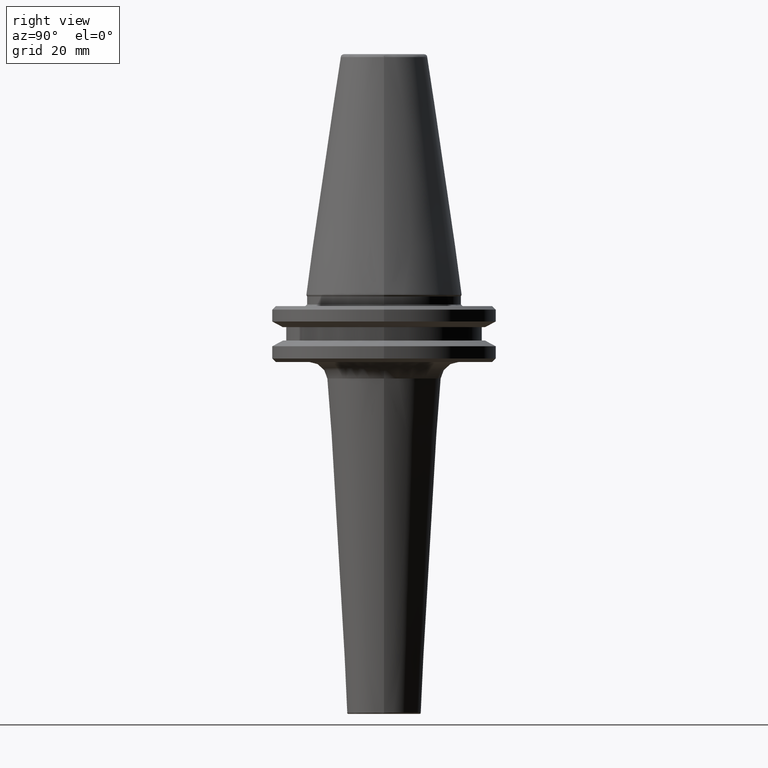
[diagram: clean part render]
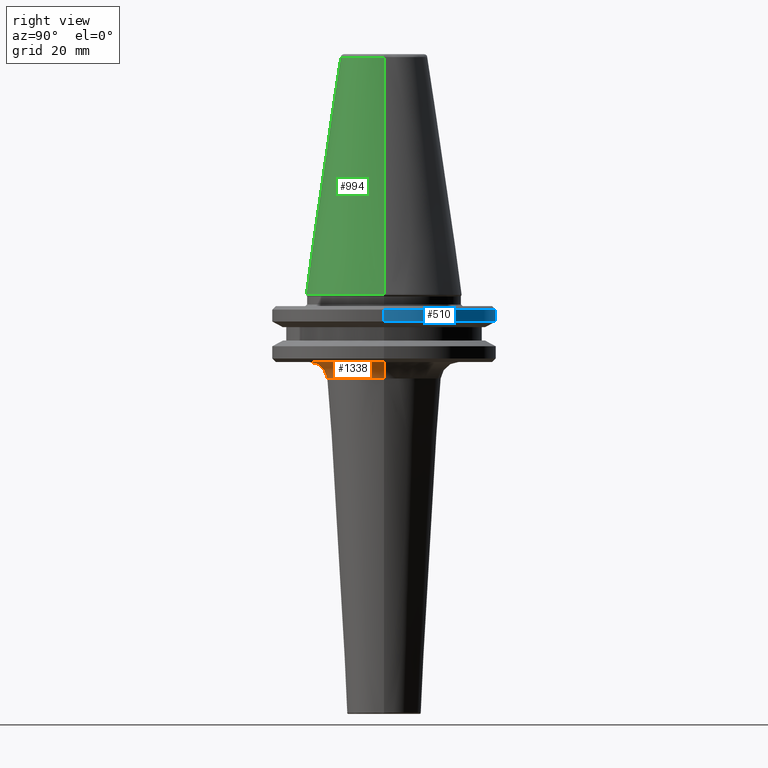
[diagram: same view with three faces highlighted in distinct colors, each labeled with its STEP entity id]
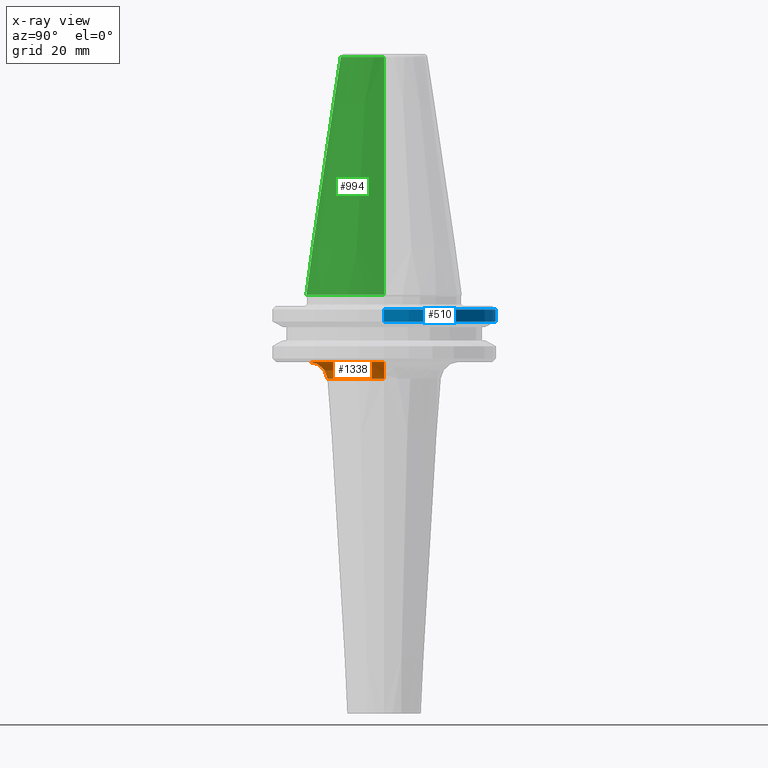
[diagram: x-ray of the same camera — body ghosted, the three highlighted faces saturated]
A machine part, right view with three faces highlighted in distinct colors.
The next image is the same camera in x-ray (body ghosted, the three faces saturated) — at least one of them is partly hidden behind the body in this view.
Their STEP definitions:

[orange] entity #1338 — the highlighted face is a freeform B-spline surface patch.
#2 = CARTESIAN_POINT ( 'NONE',  ( 18.41738258006083800, -4.510957725068745100E-015, -19.10000000000000500 ) ) ;
#5 = CARTESIAN_POINT ( 'NONE',  ( 7.245179490135040400, -19.93444734564111800, -19.10000000000000500 ) ) ;
#12 = CARTESIAN_POINT ( 'NONE',  ( 13.96191988743537300, -16.03207156304164400, -19.10000000000000900 ) ) ;
#19 = CARTESIAN_POINT ( 'NONE',  ( 19.65327147606098600, -7.973229162722665500, -19.10000000000000500 ) ) ;
#24 = CARTESIAN_POINT ( 'NONE',  ( 21.20899191454728700, -1.297423906763504900, -19.10000000000000500 ) ) ;
#31 = CARTESIAN_POINT ( 'NONE',  ( -19.82891165523184900, -7.526547279138701400, -19.10000000000000500 ) ) ;
#37 = CARTESIAN_POINT ( 'NONE',  ( -14.47949722583518600, -15.51457306364508400, -19.10000000000000100 ) ) ;
#40 = CARTESIAN_POINT ( 'NONE',  ( -7.890171319430353800, -19.68675983053532300, -19.10000000000000500 ) ) ;
#75 = CARTESIAN_POINT ( 'NONE',  ( -16.21796768721838700, 1.986128221682719700E-015, -23.80053854636027200 ) ) ;
#123 = CARTESIAN_POINT ( 'NONE',  ( 1.617188075144957400, -21.16476075172741400, -19.10000000000000900 ) ) ;
#127 = CARTESIAN_POINT ( 'NONE',  ( -21.20899191454728700, -42.41798382909456000, -19.10000000000000900 ) ) ;
#128 = CARTESIAN_POINT ( 'NONE',  ( 7.646812897879106800, -19.78255597905145900, -19.10000000000000500 ) ) ;
#134 = CARTESIAN_POINT ( 'NONE',  ( 16.24708748582498100, -13.66744679531425500, -19.10000000000000900 ) ) ;
#139 = CARTESIAN_POINT ( 'NONE',  ( 19.70405137245872900, -7.846878380904066800, -19.09999999999999800 ) ) ;
#145 = CARTESIAN_POINT ( 'NONE',  ( -21.03564205626964400, -2.740627017951445100, -19.10000000000000900 ) ) ;
#152 = CARTESIAN_POINT ( 'NONE',  ( -19.75140195169200300, -7.726918737806727200, -19.10000000000000100 ) ) ;
#157 = CARTESIAN_POINT ( 'NONE',  ( -12.65746891799390600, -17.02501635467738300, -19.10000000000000500 ) ) ;
#164 = CARTESIAN_POINT ( 'NONE',  ( -7.167547126586696600, -19.97301155171382400, -19.10000000000000900 ) ) ;
#219 = ORIENTED_EDGE ( 'NONE', *, *, #420, .F. ) ;
#221 = AXIS2_PLACEMENT_3D ( 'NONE', #1362, #637, #1475 ) ;
#223 = EDGE_LOOP ( 'NONE', ( #219, #658, #270, #1185 ) ) ;
#229 = CARTESIAN_POINT ( 'NONE',  ( 3.300455330005410000, -20.95174576253894800, -19.10000000000000500 ) ) ;
#233 = CARTESIAN_POINT ( 'NONE',  ( 21.20899191454728300, -5.194704812258484000E-015, -19.10000000000000500 ) ) ;
#235 = CARTESIAN_POINT ( 'NONE',  ( 7.765277814436983000, -19.73635624534517100, -19.10000000000000500 ) ) ;
#243 = CARTESIAN_POINT ( 'NONE',  ( 17.39481296650852800, -12.13683355225072100, -19.10000000000000100 ) ) ;
#246 = CARTESIAN_POINT ( 'NONE',  ( 20.30474617699443800, -6.194561080921422700, -19.10000000000000100 ) ) ;
#249 = CARTESIAN_POINT ( 'NONE',  ( -20.90493810727572200, -3.580033281373748100, -19.09999999999999800 ) ) ;
#256 = CARTESIAN_POINT ( 'NONE',  ( -19.45613358553075400, -8.473156190059951200, -19.10000000000000100 ) ) ;
#264 = CARTESIAN_POINT ( 'NONE',  ( -11.91035130397926900, -17.54918983816897400, -19.10000000000000500 ) ) ;
#268 = CARTESIAN_POINT ( 'NONE',  ( 16.38516356507829700, -4.013207622695794900E-015, -21.01394058202841100 ) ) ;
#270 = ORIENTED_EDGE ( 'NONE', *, *, #349, .T. ) ;
#329 = CARTESIAN_POINT ( 'NONE',  ( -4.449174394529532800, -20.73836181555445500, -19.10000000000000900 ) ) ;
#335 = CARTESIAN_POINT ( 'NONE',  ( 3.719660927436901200, -20.88033370111820000, -19.10000000000000500 ) ) ;
#341 = CARTESIAN_POINT ( 'NONE',  ( 9.447691232968583800, -19.01232416388288000, -19.10000000000000900 ) ) ;
#346 = CARTESIAN_POINT ( 'NONE',  ( 17.65119499915087800, -11.75861807051170200, -19.10000000000001200 ) ) ;
#349 = EDGE_CURVE ( 'NONE', #1371, #354, #1437, .T. ) ;
#351 = CARTESIAN_POINT ( 'NONE',  ( 20.73836181555444800, -4.449174394529525700, -19.10000000000000100 ) ) ;
#354 = VERTEX_POINT ( 'NONE', #901 ) ;
#356 = CARTESIAN_POINT ( 'NONE',  ( -20.86952471368809700, -3.779504474396812300, -19.10000000000000100 ) ) ;
#361 = CARTESIAN_POINT ( 'NONE',  ( -18.41019482401028300, -10.54120912128545300, -19.10000000000000500 ) ) ;
#365 = CARTESIAN_POINT ( 'NONE',  ( -11.68073377865387000, -17.70281681997822400, -19.10000000000000100 ) ) ;
#409 = CARTESIAN_POINT ( 'NONE',  ( -21.20899191454728300, 2.597352406129242000E-015, -19.10000000000000500 ) ) ;
#420 = EDGE_CURVE ( 'NONE', #1411, #1456, #973, .T. ) ;
#422 = DIRECTION ( 'NONE',  ( 0.0000000000000000000, 1.000000000000000000, 0.0000000000000000000 ) ) ;
#426 = B_SPLINE_CURVE_WITH_KNOTS ( 'NONE', 3,
 ( #580, #1299, #822, #145, #946, #249, #1074, #356, #1177, #470, #1307, #586, #1428, #703, #31, #827, #152, #954, #256, #1081, #361, #1186, #475, #1313, #593, #1434, #709, #37, #834, #157, #960, #264, #1086, #365, #1191, #483, #1317, #598, #1440, #714, #40, #837, #164, #1467, #1043, #329, #1157, #445, #1280, #557, #1401, #676, #1506, #800, #123, #924, #229, #1048, #335, #1160, #449, #1286, #562, #1407, #683, #5, #804, #128, #931, #235, #1056, #341, #1165, #453, #1292, #570, #1413, #689, #12, #810, #134, #939, #243, #1062, #346, #1170, #461, #1296, #575, #1420, #695, #19, #816, #139, #942, #246, #1070, #351, #1174, #467, #1301, #581, #1425, #701, #24, #823 ),
 .UNSPECIFIED., .F., .F.,
 ( 4, 1, 1, 1, 1, 1, 2, 2, 1, 1, 1, 1, 2, 2, 1, 1, 1, 2, 2, 2, 1, 1, 1, 2, 2, 1, 1, 1, 1, 2, 2, 1, 1, 1, 1, 1, 2, 2, 2, 1, 1, 1, 1, 1, 2, 2, 1, 1, 1, 1, 2, 2, 1, 1, 1, 2, 2, 2, 1, 1, 1, 2, 2, 1, 1, 1, 1, 2, 2, 1, 1, 1, 1, 1, 2, 2, 4 ),
 ( 0.0000000000000000000, 0.03124999999999844600, 0.04687499999999766900, 0.05468749999999729400, 0.05859374999999709300, 0.06054687499999696800, 0.06152343749999690500, 0.06249999999999684300, 0.09374999999999593400, 0.1093749999999954300, 0.1171874999999952000, 0.1210937499999950600, 0.1230468749999950200, 0.1249999999999949800, 0.1562499999999940600, 0.1718749999999935300, 0.1796874999999932300, 0.1835937499999930600, 0.1874999999999928900, 0.2499999999999893400, 0.2812499999999875700, 0.2968749999999866800, 0.3046874999999862300, 0.3085937499999860700, 0.3124999999999859600, 0.3437499999999846800, 0.3593749999999841200, 0.3671874999999839000, 0.3710937499999837900, 0.3730468749999837400, 0.3749999999999836200, 0.4062499999999832900, 0.4218749999999831800, 0.4296874999999831200, 0.4335937499999830700, 0.4355468749999830700, 0.4365234374999830700, 0.4374999999999830700, 0.4999999999999834600, 0.5312499999999836800, 0.5468749999999837900, 0.5546874999999837900, 0.5585937499999839000, 0.5605468749999839000, 0.5615234374999839000, 0.5624999999999840100, 0.5937499999999850100, 0.6093749999999854600, 0.6171874999999856800, 0.6210937499999859000, 0.6230468749999859000, 0.6249999999999859000, 0.6562499999999869000, 0.6718749999999874500, 0.6796874999999876800, 0.6835937499999879000, 0.6874999999999880100, 0.7499999999999896700, 0.7812499999999905600, 0.7968749999999910100, 0.8046874999999912300, 0.8085937499999914500, 0.8124999999999915600, 0.8437499999999927800, 0.8593749999999934500, 0.8671874999999937800, 0.8710937499999941200, 0.8730468749999942300, 0.8749999999999943400, 0.9062499999999965600, 0.9218749999999975600, 0.9296874999999980000, 0.9335937499999983300, 0.9355468749999984500, 0.9365234374999984500, 0.9374999999999985600, 1.000000000000000000 ),
 .UNSPECIFIED. ) ;
#439 = DIRECTION ( 'NONE',  ( -1.224646799147353200E-016, -1.000000000000000000, 0.0000000000000000000 ) ) ;
#445 = CARTESIAN_POINT ( 'NONE',  ( -4.007114181885436100, -20.82708894541573500, -19.10000000000000500 ) ) ;
#449 = CARTESIAN_POINT ( 'NONE',  ( 3.819377156980122900, -20.86226438868060000, -19.10000000000001200 ) ) ;
#453 = CARTESIAN_POINT ( 'NONE',  ( 11.07710815000811300, -18.08804223375312500, -19.10000000000000100 ) ) ;
#461 = CARTESIAN_POINT ( 'NONE',  ( 18.14394470971405600, -11.00603488672814500, -19.10000000000000500 ) ) ;
#467 = CARTESIAN_POINT ( 'NONE',  ( 20.82708894541573500, -4.007114181885436100, -19.10000000000000500 ) ) ;
#470 = CARTESIAN_POINT ( 'NONE',  ( -20.85882534491030400, -3.838122239267671700, -19.10000000000000500 ) ) ;
#475 = CARTESIAN_POINT ( 'NONE',  ( -17.94545799785989000, -11.30445203758157300, -19.10000000000000500 ) ) ;
#483 = CARTESIAN_POINT ( 'NONE',  ( -10.08137943592157400, -18.68403516072661200, -19.10000000000000100 ) ) ;
#516 = CARTESIAN_POINT ( 'NONE',  ( 16.21796768721838000, -32.43593537443677400, -23.80053854636027200 ) ) ;
#539 =( BOUNDED_SURFACE ( )  B_SPLINE_SURFACE ( 3, 3, ( 
 ( #75, #1228, #516, #1359 ),
 ( #634, #1472, #755, #268 ),
 ( #560, #1406, #682, #2 ),
 ( #803, #127, #930, #233 ) ),
 .UNSPECIFIED., .F., .F., .F. ) 
 B_SPLINE_SURFACE_WITH_KNOTS ( ( 4, 4 ),
 ( 4, 4 ),
 ( 0.0000000000000000000, 1.000000000000000000 ),
 ( 0.0000000000000000000, 1.000000000000000000 ),
 .UNSPECIFIED. ) 
 GEOMETRIC_REPRESENTATION_ITEM ( )  RATIONAL_B_SPLINE_SURFACE ( (
 ( 1.000000000000000000, 0.3333333333333334300, 0.3333333333333334300, 1.000000000000000000),
 ( 0.8186493336483506900, 0.2728831112161169700, 0.2728831112161169700, 0.8186493336483506900),
 ( 0.8186493336483506900, 0.2728831112161169700, 0.2728831112161169700, 0.8186493336483506900),
 ( 1.000000000000000000, 0.3333333333333334300, 0.3333333333333334300, 1.000000000000000000) ) ) 
 REPRESENTATION_ITEM ( '' )  SURFACE ( )  );
#557 = CARTESIAN_POINT ( 'NONE',  ( -3.901526193130961500, -20.84705883212586700, -19.10000000000000500 ) ) ;
#560 = CARTESIAN_POINT ( 'NONE',  ( -18.41738258006083800, 2.255478862534372600E-015, -19.10000000000000500 ) ) ;
#562 = CARTESIAN_POINT ( 'NONE',  ( 4.535434286166736900, -20.72980403604616800, -19.10000000000000100 ) ) ;
#570 = CARTESIAN_POINT ( 'NONE',  ( 11.45549749046693600, -17.84939765391577300, -19.10000000000000900 ) ) ;
#575 = CARTESIAN_POINT ( 'NONE',  ( 19.23000056680398000, -8.958765118876346600, -19.09999999999999800 ) ) ;
#580 = CARTESIAN_POINT ( 'NONE',  ( -21.20899191454728300, 2.597352406129242000E-015, -19.10000000000000500 ) ) ;
#581 = CARTESIAN_POINT ( 'NONE',  ( 20.84705883212586400, -3.901526193130957100, -19.10000000000000500 ) ) ;
#586 = CARTESIAN_POINT ( 'NONE',  ( -20.49408997577171800, -5.536028421716407500, -19.10000000000000500 ) ) ;
#593 = CARTESIAN_POINT ( 'NONE',  ( -17.80189258276777800, -11.52919039615042400, -19.10000000000000100 ) ) ;
#598 = CARTESIAN_POINT ( 'NONE',  ( -8.386495554252000800, -19.48194823981366500, -19.10000000000000500 ) ) ;
#634 = CARTESIAN_POINT ( 'NONE',  ( -16.38516356507829700, 2.006603811347897500E-015, -21.01394058202841100 ) ) ;
#637 = DIRECTION ( 'NONE',  ( -0.0000000000000000000, -0.0000000000000000000, -1.000000000000000000 ) ) ;
#658 = ORIENTED_EDGE ( 'NONE', *, *, #1424, .F. ) ;
#676 = CARTESIAN_POINT ( 'NONE',  ( -2.584016856301991200, -21.09093403236602200, -19.10000000000000900 ) ) ;
#682 = CARTESIAN_POINT ( 'NONE',  ( 18.41738258006083100, -36.83476516012167700, -19.10000000000000900 ) ) ;
#683 = CARTESIAN_POINT ( 'NONE',  ( 6.679451864356756200, -20.13500851041325700, -19.10000000000000500 ) ) ;
#689 = CARTESIAN_POINT ( 'NONE',  ( 12.83099665839672300, -16.95084618485316200, -19.10000000000000900 ) ) ;
#695 = CARTESIAN_POINT ( 'NONE',  ( 19.60266331881307200, -8.097620170409781400, -19.10000000000000100 ) ) ;
#701 = CARTESIAN_POINT ( 'NONE',  ( 21.09096647912420900, -2.583841542548717100, -19.10000000000000500 ) ) ;
#703 = CARTESIAN_POINT ( 'NONE',  ( -19.93444734564112900, -7.245179490135034200, -19.10000000000000500 ) ) ;
#709 = CARTESIAN_POINT ( 'NONE',  ( -16.03207156305076700, -13.96191988743095500, -19.10000000000000900 ) ) ;
#714 = CARTESIAN_POINT ( 'NONE',  ( -7.973229162723378700, -19.65327147606069900, -19.10000000000000100 ) ) ;
#755 = CARTESIAN_POINT ( 'NONE',  ( 16.38516356507829000, -32.77032713015659500, -21.01394058202841100 ) ) ;
#800 = CARTESIAN_POINT ( 'NONE',  ( 0.6484465495574384100, -21.20900812909801300, -19.10000000000000500 ) ) ;
#803 = CARTESIAN_POINT ( 'NONE',  ( -21.20899191454728300, 2.597352406129242000E-015, -19.10000000000000500 ) ) ;
#804 = CARTESIAN_POINT ( 'NONE',  ( 7.526547279138705800, -19.82891165523184500, -19.10000000000000900 ) ) ;
#810 = CARTESIAN_POINT ( 'NONE',  ( 15.51457306364288200, -14.47949722583974700, -19.10000000000000900 ) ) ;
#816 = CARTESIAN_POINT ( 'NONE',  ( 19.68675983053545400, -7.890171319429980700, -19.10000000000000100 ) ) ;
#822 = CARTESIAN_POINT ( 'NONE',  ( -21.16473237626363300, -1.617341433942065100, -19.10000000000000500 ) ) ;
#823 = CARTESIAN_POINT ( 'NONE',  ( 21.20899191454728300, 0.0000000000000000000, -19.10000000000000500 ) ) ;
#827 = CARTESIAN_POINT ( 'NONE',  ( -19.78255597905147300, -7.646812897879105000, -19.10000000000000500 ) ) ;
#834 = CARTESIAN_POINT ( 'NONE',  ( -13.66744679530627600, -16.24708748582882500, -19.10000000000000900 ) ) ;
#837 = CARTESIAN_POINT ( 'NONE',  ( -7.846878380904073900, -19.70405137245873200, -19.10000000000000900 ) ) ;
#901 = CARTESIAN_POINT ( 'NONE',  ( 21.20899191454728300, 0.0000000000000000000, -19.10000000000000500 ) ) ;
#924 = CARTESIAN_POINT ( 'NONE',  ( 2.740511998853606200, -21.03566333786749000, -19.10000000000000900 ) ) ;
#930 = CARTESIAN_POINT ( 'NONE',  ( 21.20899191454726900, -42.41798382909456000, -19.10000000000000900 ) ) ;
#931 = CARTESIAN_POINT ( 'NONE',  ( 7.726918737806731700, -19.75140195169200300, -19.10000000000000900 ) ) ;
#939 = CARTESIAN_POINT ( 'NONE',  ( 17.02501635467449900, -12.65746891799988000, -19.10000000000000100 ) ) ;
#942 = CARTESIAN_POINT ( 'NONE',  ( 19.97301155171384200, -7.167547126586686800, -19.10000000000001200 ) ) ;
#946 = CARTESIAN_POINT ( 'NONE',  ( -20.95173334827355300, -3.300522424479144700, -19.10000000000000500 ) ) ;
#954 = CARTESIAN_POINT ( 'NONE',  ( -19.73635624534517400, -7.765277814436977600, -19.10000000000000500 ) ) ;
#956 = DIRECTION ( 'NONE',  ( 1.000000000000000000, 0.0000000000000000000, 0.0000000000000000000 ) ) ;
#960 = CARTESIAN_POINT ( 'NONE',  ( -12.13683355224723000, -17.39481296651022600, -19.10000000000000900 ) ) ;
#973 = CIRCLE ( 'NONE', #1203, 5.000000000000004400 ) ;
#1043 = CARTESIAN_POINT ( 'NONE',  ( -5.035032919181853500, -20.60781564609930400, -19.10000000000000500 ) ) ;
#1048 = CARTESIAN_POINT ( 'NONE',  ( 3.579997337905674200, -20.90494475777505200, -19.10000000000000500 ) ) ;
#1056 = CARTESIAN_POINT ( 'NONE',  ( 8.473156190059958300, -19.45613358553075000, -19.10000000000000500 ) ) ;
#1062 = CARTESIAN_POINT ( 'NONE',  ( 17.54918983816796200, -11.91035130398136700, -19.10000000000000100 ) ) ;
#1070 = CARTESIAN_POINT ( 'NONE',  ( 20.60781564609931100, -5.035032919181849000, -19.10000000000000900 ) ) ;
#1074 = CARTESIAN_POINT ( 'NONE',  ( -20.88033026502687800, -3.719679498228741600, -19.10000000000000500 ) ) ;
#1076 = CARTESIAN_POINT ( 'NONE',  ( -16.21796768721838700, 1.986128221682719300E-015, -23.80053854636027200 ) ) ;
#1081 = CARTESIAN_POINT ( 'NONE',  ( -19.01232416388287700, -9.447691232968569600, -19.10000000000000500 ) ) ;
#1086 = CARTESIAN_POINT ( 'NONE',  ( -11.75861807051060000, -17.65119499915141400, -19.10000000000000500 ) ) ;
#1139 = CARTESIAN_POINT ( 'NONE',  ( 21.20899191454728300, 0.0000000000000000000, -24.10000000000000900 ) ) ;
#1154 = CARTESIAN_POINT ( 'NONE',  ( -21.20899191454728300, 2.597352406129242000E-015, -24.10000000000000900 ) ) ;
#1157 = CARTESIAN_POINT ( 'NONE',  ( -4.154721521257739500, -20.79838775900767800, -19.10000000000000500 ) ) ;
#1160 = CARTESIAN_POINT ( 'NONE',  ( 3.779493734146233100, -20.86952670092063800, -19.10000000000000900 ) ) ;
#1165 = CARTESIAN_POINT ( 'NONE',  ( 10.54120912128545800, -18.41019482401027900, -19.10000000000000500 ) ) ;
#1170 = CARTESIAN_POINT ( 'NONE',  ( 17.70281681997808900, -11.68073377865424000, -19.10000000000000500 ) ) ;
#1173 = CARTESIAN_POINT ( 'NONE',  ( 16.21796768721838700, 0.0000000000000000000, -23.80053854636027200 ) ) ;
#1174 = CARTESIAN_POINT ( 'NONE',  ( 20.79838775900768200, -4.154721521257738600, -19.10000000000000100 ) ) ;
#1177 = CARTESIAN_POINT ( 'NONE',  ( -20.86226338318843100, -3.819382591290177800, -19.10000000000000900 ) ) ;
#1185 = ORIENTED_EDGE ( 'NONE', *, *, #1365, .F. ) ;
#1186 = CARTESIAN_POINT ( 'NONE',  ( -18.08804223375313200, -11.07710815000810300, -19.10000000000000500 ) ) ;
#1191 = CARTESIAN_POINT ( 'NONE',  ( -11.00603488673111500, -18.14394470971288300, -19.10000000000000900 ) ) ;
#1203 = AXIS2_PLACEMENT_3D ( 'NONE', #1154, #439, #1276 ) ;
#1228 = CARTESIAN_POINT ( 'NONE',  ( -16.21796768721839000, -32.43593537443676000, -23.80053854636027200 ) ) ;
#1276 = DIRECTION ( 'NONE',  ( -1.000000000000000000, 1.224646799147352500E-016, 0.0000000000000000000 ) ) ;
#1278 = AXIS2_PLACEMENT_3D ( 'NONE', #1139, #422, #956 ) ;
#1280 = CARTESIAN_POINT ( 'NONE',  ( -3.943772271568077900, -20.83910835702235100, -19.10000000000000500 ) ) ;
#1286 = CARTESIAN_POINT ( 'NONE',  ( 3.838122239267670400, -20.85882534491031100, -19.10000000000000900 ) ) ;
#1292 = CARTESIAN_POINT ( 'NONE',  ( 11.30445203758156900, -17.94545799785988300, -19.10000000000000100 ) ) ;
#1296 = CARTESIAN_POINT ( 'NONE',  ( 18.68403516072865500, -10.08137943591639800, -19.10000000000000500 ) ) ;
#1299 = CARTESIAN_POINT ( 'NONE',  ( -21.20899191454728300, -0.6485341831557842600, -19.10000000000000500 ) ) ;
#1301 = CARTESIAN_POINT ( 'NONE',  ( 20.83910835702234700, -3.943772271568073400, -19.10000000000000100 ) ) ;
#1307 = CARTESIAN_POINT ( 'NONE',  ( -20.72980403604616800, -4.535434286166752000, -19.10000000000000100 ) ) ;
#1313 = CARTESIAN_POINT ( 'NONE',  ( -17.84939765391577600, -11.45549749046693600, -19.10000000000000900 ) ) ;
#1317 = CARTESIAN_POINT ( 'NONE',  ( -8.958765118880235100, -19.23000056680243800, -19.10000000000000500 ) ) ;
#1332 = FACE_OUTER_BOUND ( 'NONE', #223, .T. ) ;
#1338 = ADVANCED_FACE ( 'NONE', ( #1332 ), #539, .F. ) ;
#1359 = CARTESIAN_POINT ( 'NONE',  ( 16.21796768721838700, -3.972256443365439400E-015, -23.80053854636027200 ) ) ;
#1362 = CARTESIAN_POINT ( 'NONE',  ( 0.0000000000000000000, 0.0000000000000000000, -23.80053854636027200 ) ) ;
#1365 = EDGE_CURVE ( 'NONE', #1456, #354, #426, .T. ) ;
#1371 = VERTEX_POINT ( 'NONE', #1173 ) ;
#1401 = CARTESIAN_POINT ( 'NONE',  ( -3.879178470653240400, -20.85122782040168600, -19.10000000000000500 ) ) ;
#1404 = CIRCLE ( 'NONE', #221, 16.21796768721838700 ) ;
#1406 = CARTESIAN_POINT ( 'NONE',  ( -18.41738258006084200, -36.83476516012167000, -19.10000000000000900 ) ) ;
#1407 = CARTESIAN_POINT ( 'NONE',  ( 5.536028421716391500, -20.49408997577171100, -19.10000000000000500 ) ) ;
#1411 = VERTEX_POINT ( 'NONE', #1076 ) ;
#1413 = CARTESIAN_POINT ( 'NONE',  ( 11.52919039615127700, -17.80189258276722300, -19.10000000000000500 ) ) ;
#1420 = CARTESIAN_POINT ( 'NONE',  ( 19.48194823981455300, -8.386495554249735900, -19.10000000000000500 ) ) ;
#1424 = EDGE_CURVE ( 'NONE', #1371, #1411, #1404, .T. ) ;
#1425 = CARTESIAN_POINT ( 'NONE',  ( 20.85122731342109500, -3.879181209930633300, -19.10000000000000900 ) ) ;
#1428 = CARTESIAN_POINT ( 'NONE',  ( -20.13500851041326100, -6.679451864356758900, -19.10000000000000900 ) ) ;
#1434 = CARTESIAN_POINT ( 'NONE',  ( -16.95084618484426600, -12.83099665841034400, -19.10000000000001200 ) ) ;
#1437 = CIRCLE ( 'NONE', #1278, 5.000000000000004400 ) ;
#1440 = CARTESIAN_POINT ( 'NONE',  ( -8.097620170411001800, -19.60266331881258800, -19.10000000000000500 ) ) ;
#1456 = VERTEX_POINT ( 'NONE', #409 ) ;
#1467 = CARTESIAN_POINT ( 'NONE',  ( -6.194561080921435100, -20.30474617699443500, -19.10000000000000500 ) ) ;
#1472 = CARTESIAN_POINT ( 'NONE',  ( -16.38516356507830100, -32.77032713015658800, -21.01394058202841100 ) ) ;
#1475 = DIRECTION ( 'NONE',  ( 1.000000000000000000, 0.0000000000000000000, 8.557044924162563600E-016 ) ) ;
#1506 = CARTESIAN_POINT ( 'NONE',  ( -1.296893099114886600, -21.20895948544581700, -19.10000000000000900 ) ) ;

[blue] entity #510 — the highlighted cylindrical surface (partial cylindrical patch) has radius 31.75 mm, axis along (0, 0, 1).
#29 = EDGE_CURVE ( 'NONE', #733, #762, #195, .T. ) ;
#51 = VECTOR ( 'NONE', #870, 1000.000000000000000 ) ;
#63 = DIRECTION ( 'NONE',  ( -0.0000000000000000000, -0.0000000000000000000, 1.000000000000000000 ) ) ;
#74 = CARTESIAN_POINT ( 'NONE',  ( -31.75000000000000000, 3.888253587292846500E-015, 113.5216080541959500 ) ) ;
#93 = LINE ( 'NONE', #74, #51 ) ;
#101 = CARTESIAN_POINT ( 'NONE',  ( 0.0000000000000000000, 0.0000000000000000000, -7.578163357943284800 ) ) ;
#168 = AXIS2_PLACEMENT_3D ( 'NONE', #101, #899, #209 ) ;
#195 = CIRCLE ( 'NONE', #401, 31.74999999999983300 ) ;
#209 = DIRECTION ( 'NONE',  ( 1.000000000000000000, 0.0000000000000000000, -5.463695987328526400E-017 ) ) ;
#214 = CYLINDRICAL_SURFACE ( 'NONE', #1024, 31.75000000000000000 ) ;
#225 = CARTESIAN_POINT ( 'NONE',  ( -31.75000000000000000, 3.888253587292846500E-015, -7.578163357943284800 ) ) ;
#227 = EDGE_CURVE ( 'NONE', #438, #762, #93, .T. ) ;
#294 = EDGE_LOOP ( 'NONE', ( #648, #699, #713, #717 ) ) ;
#342 = CARTESIAN_POINT ( 'NONE',  ( 31.75000000000000000, 0.0000000000000000000, -7.578163357943284800 ) ) ;
#344 = DIRECTION ( 'NONE',  ( 1.000000000000000000, 0.0000000000000000000, 0.0000000000000000000 ) ) ;
#401 = AXIS2_PLACEMENT_3D ( 'NONE', #860, #63, #1217 ) ;
#438 = VERTEX_POINT ( 'NONE', #225 ) ;
#510 = ADVANCED_FACE ( 'NONE', ( #737 ), #214, .T. ) ;
#574 = DIRECTION ( 'NONE',  ( 0.0000000000000000000, 0.0000000000000000000, 1.000000000000000000 ) ) ;
#648 = ORIENTED_EDGE ( 'NONE', *, *, #1488, .F. ) ;
#672 = VERTEX_POINT ( 'NONE', #342 ) ;
#687 = DIRECTION ( 'NONE',  ( 0.0000000000000000000, 0.0000000000000000000, 1.000000000000000000 ) ) ;
#694 = CARTESIAN_POINT ( 'NONE',  ( 0.0000000000000000000, 0.0000000000000000000, 113.5216080541959500 ) ) ;
#699 = ORIENTED_EDGE ( 'NONE', *, *, #227, .T. ) ;
#713 = ORIENTED_EDGE ( 'NONE', *, *, #29, .F. ) ;
#717 = ORIENTED_EDGE ( 'NONE', *, *, #1340, .F. ) ;
#733 = VERTEX_POINT ( 'NONE', #996 ) ;
#737 = FACE_OUTER_BOUND ( 'NONE', #294, .T. ) ;
#762 = VERTEX_POINT ( 'NONE', #1121 ) ;
#860 = CARTESIAN_POINT ( 'NONE',  ( 0.0000000000000000000, 0.0000000000000000000, -4.199999999999926500 ) ) ;
#870 = DIRECTION ( 'NONE',  ( 0.0000000000000000000, 0.0000000000000000000, 1.000000000000000000 ) ) ;
#899 = DIRECTION ( 'NONE',  ( -0.0000000000000000000, -0.0000000000000000000, -1.000000000000000000 ) ) ;
#996 = CARTESIAN_POINT ( 'NONE',  ( 31.74999999999983300, 0.0000000000000000000, -4.199999999999926500 ) ) ;
#1024 = AXIS2_PLACEMENT_3D ( 'NONE', #694, #574, #344 ) ;
#1121 = CARTESIAN_POINT ( 'NONE',  ( -31.74999999999983300, 3.888253587292836200E-015, -4.199999999999926500 ) ) ;
#1217 = DIRECTION ( 'NONE',  ( 1.000000000000000000, 0.0000000000000000000, 0.0000000000000000000 ) ) ;
#1291 = CIRCLE ( 'NONE', #168, 31.75000000000000000 ) ;
#1340 = EDGE_CURVE ( 'NONE', #672, #733, #1483, .T. ) ;
#1410 = CARTESIAN_POINT ( 'NONE',  ( 31.75000000000000000, 0.0000000000000000000, 113.5216080541959500 ) ) ;
#1483 = LINE ( 'NONE', #1410, #1502 ) ;
#1488 = EDGE_CURVE ( 'NONE', #438, #672, #1291, .T. ) ;
#1502 = VECTOR ( 'NONE', #687, 1000.000000000000000 ) ;

[green] entity #994 — the highlighted conical surface has half-angle 8.297 deg.
#18 = CARTESIAN_POINT ( 'NONE',  ( -22.22500000000000100, 0.0000000000000000000, 0.0000000000000000000 ) ) ;
#25 = CARTESIAN_POINT ( 'NONE',  ( 0.0000000000000000000, 0.0000000000000000000, 0.0000000000000000000 ) ) ;
#84 = DIRECTION ( 'NONE',  ( 1.000000000000000000, 0.0000000000000000000, 9.822541477422708000E-017 ) ) ;
#97 = VECTOR ( 'NONE', #1418, 1000.000000000000000 ) ;
#117 = DIRECTION ( 'NONE',  ( -1.000000000000000000, 0.0000000000000000000, 0.0000000000000000000 ) ) ;
#198 = CARTESIAN_POINT ( 'NONE',  ( 22.22500000000000100, 2.721777511104992800E-015, 0.0000000000000000000 ) ) ;
#257 = EDGE_LOOP ( 'NONE', ( #480, #590, #608, #678 ) ) ;
#388 = CARTESIAN_POINT ( 'NONE',  ( -22.22500000000000100, 0.0000000000000000000, 0.0000000000000000000 ) ) ;
#427 = EDGE_CURVE ( 'NONE', #546, #585, #971, .T. ) ;
#441 = CIRCLE ( 'NONE', #887, 22.22500000000000500 ) ;
#447 = DIRECTION ( 'NONE',  ( 0.1443082272673070500, 1.767266086135363700E-017, -0.9895327864921743500 ) ) ;
#465 = LINE ( 'NONE', #18, #97 ) ;
#474 = EDGE_CURVE ( 'NONE', #546, #807, #858, .T. ) ;
#480 = ORIENTED_EDGE ( 'NONE', *, *, #474, .F. ) ;
#532 = EDGE_CURVE ( 'NONE', #585, #1283, #465, .T. ) ;
#546 = VERTEX_POINT ( 'NONE', #815 ) ;
#582 = DIRECTION ( 'NONE',  ( -1.000000000000000000, 0.0000000000000000000, 0.0000000000000000000 ) ) ;
#585 = VERTEX_POINT ( 'NONE', #620 ) ;
#590 = ORIENTED_EDGE ( 'NONE', *, *, #427, .T. ) ;
#607 = AXIS2_PLACEMENT_3D ( 'NONE', #25, #1175, #582 ) ;
#608 = ORIENTED_EDGE ( 'NONE', *, *, #532, .T. ) ;
#620 = CARTESIAN_POINT ( 'NONE',  ( -12.37469537611110800, 0.0000000000000000000, 67.54430822726729400 ) ) ;
#662 = FACE_OUTER_BOUND ( 'NONE', #257, .T. ) ;
#678 = ORIENTED_EDGE ( 'NONE', *, *, #773, .F. ) ;
#759 = DIRECTION ( 'NONE',  ( -0.0000000000000000000, -0.0000000000000000000, -1.000000000000000000 ) ) ;
#773 = EDGE_CURVE ( 'NONE', #807, #1283, #441, .T. ) ;
#797 = DIRECTION ( 'NONE',  ( 0.0000000000000000000, 0.0000000000000000000, -1.000000000000000000 ) ) ;
#807 = VERTEX_POINT ( 'NONE', #198 ) ;
#813 = CONICAL_SURFACE ( 'NONE', #607, 22.22500000000000100, 0.1448138465474190500 ) ;
#815 = CARTESIAN_POINT ( 'NONE',  ( 12.37469537611110800, 2.118620309691397300E-015, 67.54430822726729400 ) ) ;
#854 = VECTOR ( 'NONE', #447, 1000.000000000000000 ) ;
#858 = LINE ( 'NONE', #921, #854 ) ;
#887 = AXIS2_PLACEMENT_3D ( 'NONE', #1476, #759, #84 ) ;
#921 = CARTESIAN_POINT ( 'NONE',  ( 22.22500000000000100, 2.721777511104992800E-015, 0.0000000000000000000 ) ) ;
#971 = CIRCLE ( 'NONE', #977, 12.37469537611110800 ) ;
#977 = AXIS2_PLACEMENT_3D ( 'NONE', #1504, #797, #117 ) ;
#994 = ADVANCED_FACE ( 'NONE', ( #662 ), #813, .T. ) ;
#1175 = DIRECTION ( 'NONE',  ( 0.0000000000000000000, 0.0000000000000000000, -1.000000000000000000 ) ) ;
#1283 = VERTEX_POINT ( 'NONE', #388 ) ;
#1418 = DIRECTION ( 'NONE',  ( -0.1443082272673070500, 0.0000000000000000000, -0.9895327864921743500 ) ) ;
#1476 = CARTESIAN_POINT ( 'NONE',  ( 0.0000000000000000000, 0.0000000000000000000, 0.0000000000000000000 ) ) ;
#1504 = CARTESIAN_POINT ( 'NONE',  ( 0.0000000000000000000, 0.0000000000000000000, 67.54430822726729400 ) ) ;